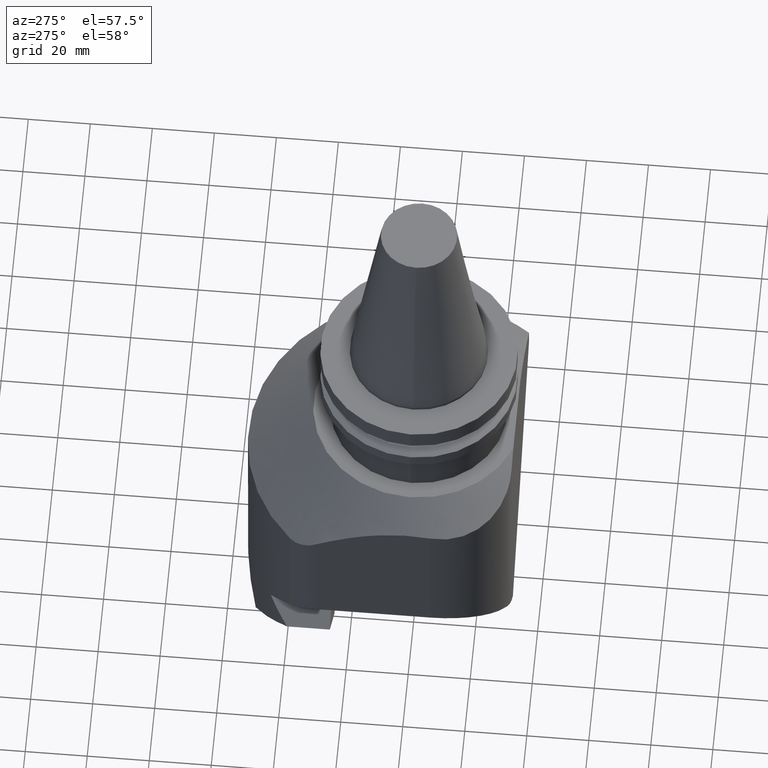
[diagram: clean part render]
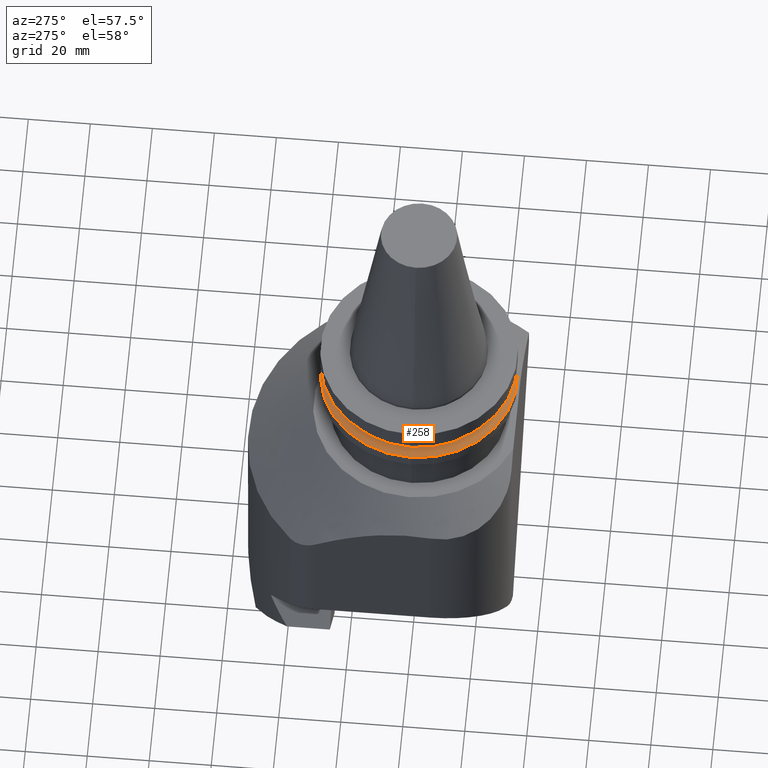
[diagram: same view with one face highlighted and labeled with its STEP entity id]
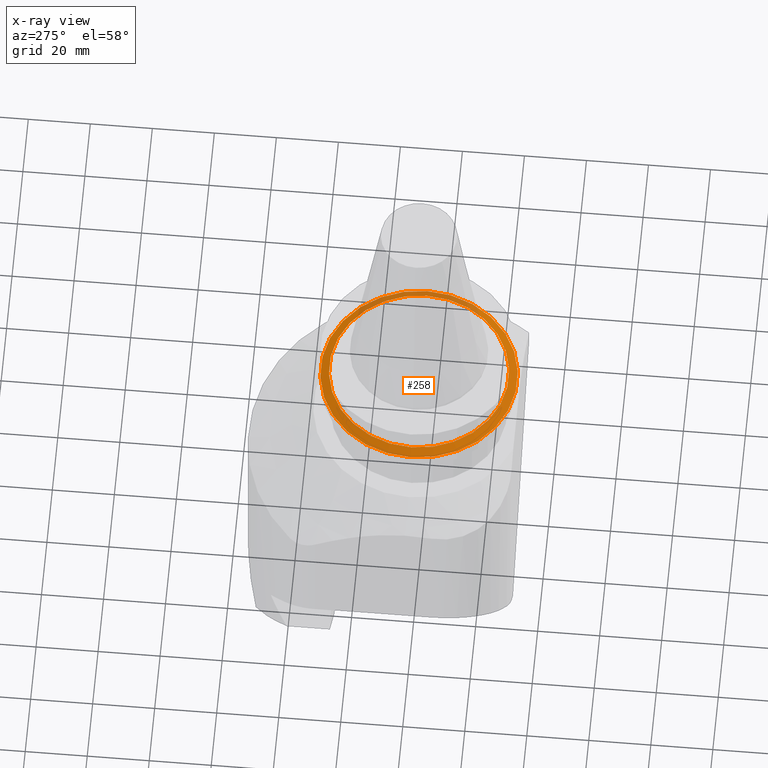
[diagram: x-ray of the same camera — body ghosted, the highlighted face saturated]
A machine part, auxiliary view. The second image highlights one B-rep face of the part: STEP entity #258.
The next image is the same camera in x-ray: the body ghosted, the highlighted face saturated — about 15% of this face is hidden behind the body in this view.
In plain terms, the highlighted conical surface has half-angle 60 deg.
Its self-contained STEP definition (entity closure, byte-faithful):
#162=EDGE_CURVE('Unnamed[1]',#409,#409,#410,.T.);
#191=EDGE_CURVE('Unnamed[1]',#450,#450,#451,.T.);
#258=ADVANCED_FACE('Unnamed[1]',(#538,#539),#540,.T.);
#409=VERTEX_POINT('',#776);
#410=CIRCLE('',#777,28.95591319);
#450=VERTEX_POINT('',#836);
#451=CIRCLE('',#837,31.75);
#538=FACE_BOUND('',#975,.T.);
#539=FACE_BOUND('',#976,.T.);
#540=CONICAL_SURFACE('',#977,30.352956595,1.04719755170464);
#776=CARTESIAN_POINT('',(-28.9559131899997,4.52064524763417E-015,-13.0400000000001));
#777=AXIS2_PLACEMENT_3D('',#1180,#1181,#1182);
#836=CARTESIAN_POINT('',(-31.7499999999997,4.93513269182656E-015,-14.6531667700001));
#837=AXIS2_PLACEMENT_3D('',#1223,#1224,#1225);
#975=EDGE_LOOP('',(#1333));
#976=EDGE_LOOP('',(#1334));
#977=AXIS2_PLACEMENT_3D('',#1335,#1336,#1337);
#1180=CARTESIAN_POINT('',(3.36299977896397E-013,-7.98469713044136E-016,-13.04));
#1181=DIRECTION('',(4.23985966663277E-015,-6.12323399573684E-017,-1.0));
#1182=DIRECTION('',(-1.0,1.83697019872103E-016,-4.23985966663277E-015));
#1223=CARTESIAN_POINT('',(3.43139578620073E-013,-8.97247689112706E-016,-14.65316677));
#1224=DIRECTION('',(4.23985966663277E-015,-6.12323399573684E-017,-1.0));
#1225=DIRECTION('',(-1.0,1.83697019872103E-016,-4.23985966663277E-015));
#1333=ORIENTED_EDGE('',*,*,#191,.F.);
#1334=ORIENTED_EDGE('',*,*,#162,.T.);
#1335=CARTESIAN_POINT('',(3.39719778258235E-013,-8.47858701078421E-016,-13.846583385));
#1336=DIRECTION('',(4.23985966663276E-015,-6.12323399573684E-017,-1.0));
#1337=DIRECTION('',(-1.0,1.83697019872103E-016,-4.23985966663276E-015));